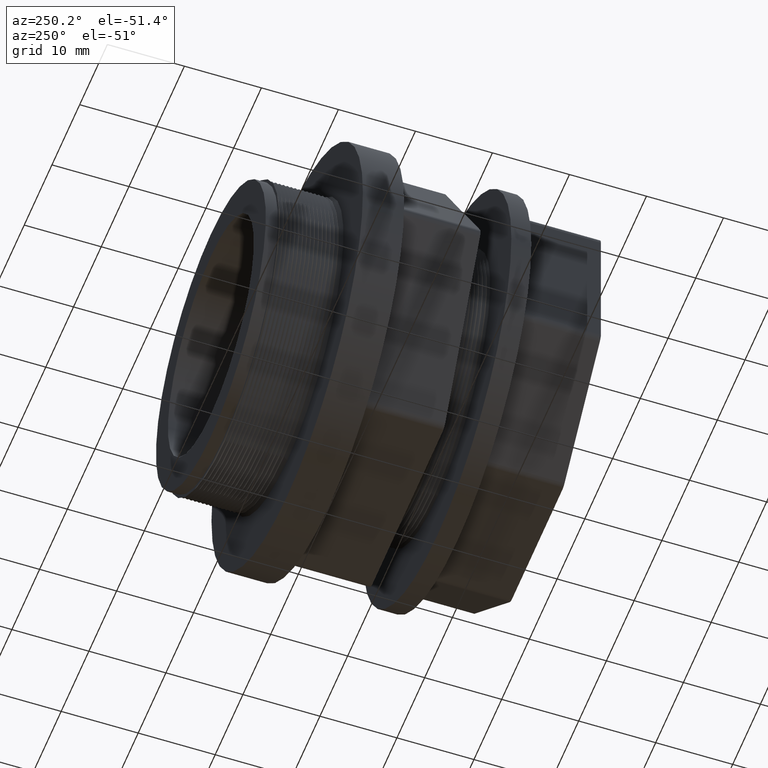
[diagram: clean part render]
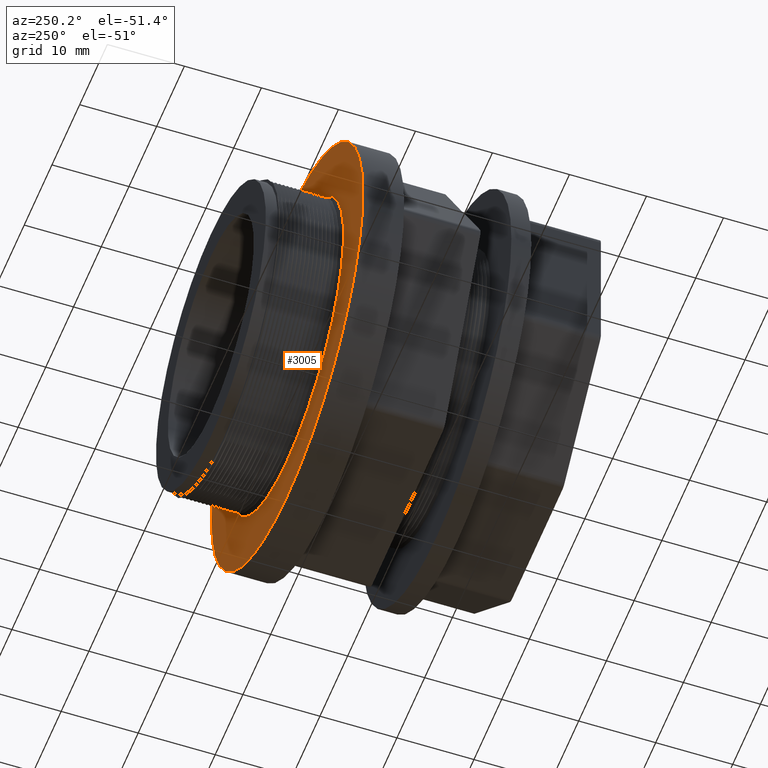
[diagram: same view with one face highlighted and labeled with its STEP entity id]
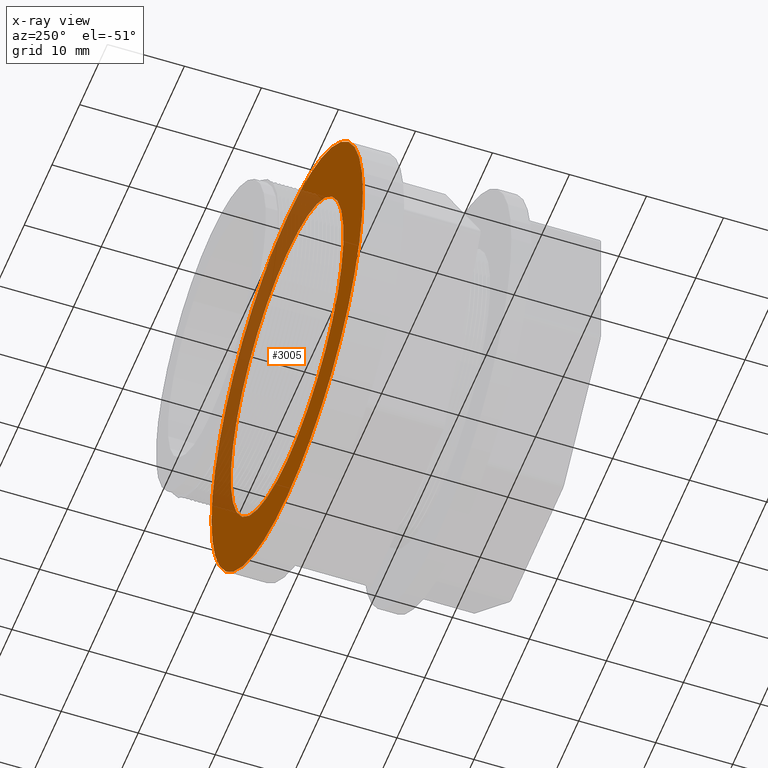
[diagram: x-ray of the same camera — body ghosted, the highlighted face saturated]
A machine part, auxiliary view. The second image highlights one B-rep face of the part: STEP entity #3005.
The next image is the same camera in x-ray: the body ghosted, the highlighted face saturated — about 32% of this face is hidden behind the body in this view.
In plain terms, the highlighted planar face has unit normal (-0, 1, 0).
Its self-contained STEP definition (entity closure, byte-faithful):
#11 = EDGE_CURVE ( 'NONE', #151, #12, #2929, .T. ) ;
#12 = VERTEX_POINT ( 'NONE', #2940 ) ;
#24 = EDGE_CURVE ( 'NONE', #289, #292, #3447, .T. ) ;
#151 = VERTEX_POINT ( 'NONE', #833 ) ;
#289 = VERTEX_POINT ( 'NONE', #1255 ) ;
#291 = EDGE_CURVE ( 'NONE', #292, #289, #1250, .T. ) ;
#292 = VERTEX_POINT ( 'NONE', #1242 ) ;
#312 = ORIENTED_EDGE ( 'NONE', *, *, #11, .F. ) ;
#320 = ORIENTED_EDGE ( 'NONE', *, *, #291, .T. ) ;
#330 = ORIENTED_EDGE ( 'NONE', *, *, #24, .T. ) ;
#331 = EDGE_LOOP ( 'NONE', ( #3136, #312 ) ) ;
#833 = CARTESIAN_POINT ( 'NONE',  ( 9.797174393178826200E-017, 1.379999999999999700, 0.8000000000000000400 ) ) ;
#1242 = CARTESIAN_POINT ( 'NONE',  ( 0.0000000000000000000, 1.379999999999999700, 1.075000000000000000 ) ) ;
#1243 = DIRECTION ( 'NONE',  ( 0.0000000000000000000, 0.0000000000000000000, 1.000000000000000000 ) ) ;
#1245 = DIRECTION ( 'NONE',  ( -0.0000000000000000000, 1.000000000000000000, -0.0000000000000000000 ) ) ;
#1247 = CARTESIAN_POINT ( 'NONE',  ( 0.0000000000000000000, 1.379999999999999700, 0.0000000000000000000 ) ) ;
#1248 = AXIS2_PLACEMENT_3D ( 'NONE', #1247, #1245, #1243 ) ;
#1250 = CIRCLE ( 'NONE', #1248, 1.075000000000000000 ) ;
#1255 = CARTESIAN_POINT ( 'NONE',  ( 1.316495309083404600E-016, 1.379999999999999700, -1.075000000000000000 ) ) ;
#2916 = AXIS2_PLACEMENT_3D ( 'NONE', #2943, #2942, #2941 ) ;
#2929 = CIRCLE ( 'NONE', #2916, 0.8000000000000000400 ) ;
#2940 = CARTESIAN_POINT ( 'NONE',  ( 0.0000000000000000000, 1.379999999999999700, -0.8000000000000000400 ) ) ;
#2941 = DIRECTION ( 'NONE',  ( 0.0000000000000000000, 0.0000000000000000000, 1.000000000000000000 ) ) ;
#2942 = DIRECTION ( 'NONE',  ( -0.0000000000000000000, 1.000000000000000000, -0.0000000000000000000 ) ) ;
#2943 = CARTESIAN_POINT ( 'NONE',  ( 0.0000000000000000000, 1.379999999999999700, 0.0000000000000000000 ) ) ;
#3005 = ADVANCED_FACE ( 'NONE', ( #3463, #3462 ), #3461, .T. ) ;
#3006 = EDGE_LOOP ( 'NONE', ( #320, #330 ) ) ;
#3136 = ORIENTED_EDGE ( 'NONE', *, *, #3138, .F. ) ;
#3138 = EDGE_CURVE ( 'NONE', #12, #151, #3646, .T. ) ;
#3441 = DIRECTION ( 'NONE',  ( 0.0000000000000000000, 0.0000000000000000000, 1.000000000000000000 ) ) ;
#3443 = DIRECTION ( 'NONE',  ( -0.0000000000000000000, 1.000000000000000000, -0.0000000000000000000 ) ) ;
#3444 = CARTESIAN_POINT ( 'NONE',  ( 0.0000000000000000000, 1.379999999999999700, 0.0000000000000000000 ) ) ;
#3446 = AXIS2_PLACEMENT_3D ( 'NONE', #3444, #3443, #3441 ) ;
#3447 = CIRCLE ( 'NONE', #3446, 1.075000000000000000 ) ;
#3455 = DIRECTION ( 'NONE',  ( 0.0000000000000000000, 0.0000000000000000000, 1.000000000000000000 ) ) ;
#3456 = DIRECTION ( 'NONE',  ( -0.0000000000000000000, 1.000000000000000000, 0.0000000000000000000 ) ) ;
#3457 = AXIS2_PLACEMENT_3D ( 'NONE', #3459, #3456, #3455 ) ;
#3459 = CARTESIAN_POINT ( 'NONE',  ( -0.8000000000000000400, 1.379999999999999700, 0.0000000000000000000 ) ) ;
#3461 = PLANE ( 'NONE',  #3457 ) ;
#3462 = FACE_BOUND ( 'NONE', #331, .T. ) ;
#3463 = FACE_OUTER_BOUND ( 'NONE', #3006, .T. ) ;
#3644 = CARTESIAN_POINT ( 'NONE',  ( 0.0000000000000000000, 1.379999999999999700, 0.0000000000000000000 ) ) ;
#3645 = AXIS2_PLACEMENT_3D ( 'NONE', #3644, #3691, #3690 ) ;
#3646 = CIRCLE ( 'NONE', #3645, 0.8000000000000000400 ) ;
#3690 = DIRECTION ( 'NONE',  ( 0.0000000000000000000, 0.0000000000000000000, 1.000000000000000000 ) ) ;
#3691 = DIRECTION ( 'NONE',  ( -0.0000000000000000000, 1.000000000000000000, -0.0000000000000000000 ) ) ;